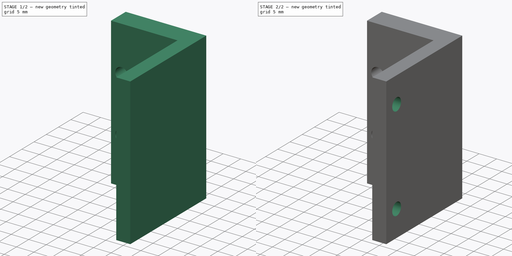
[diagram: build sequence overview — one tinted view per stage of 2, left to right]
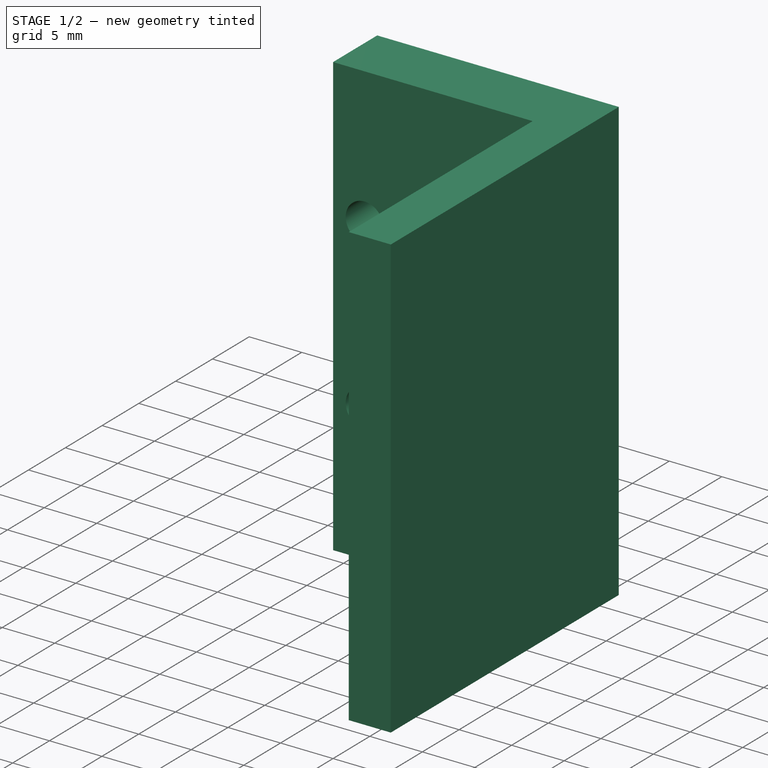
[diagram: stage 1 of 2 — iso view after this stage's code; geometry added in this stage tinted green]
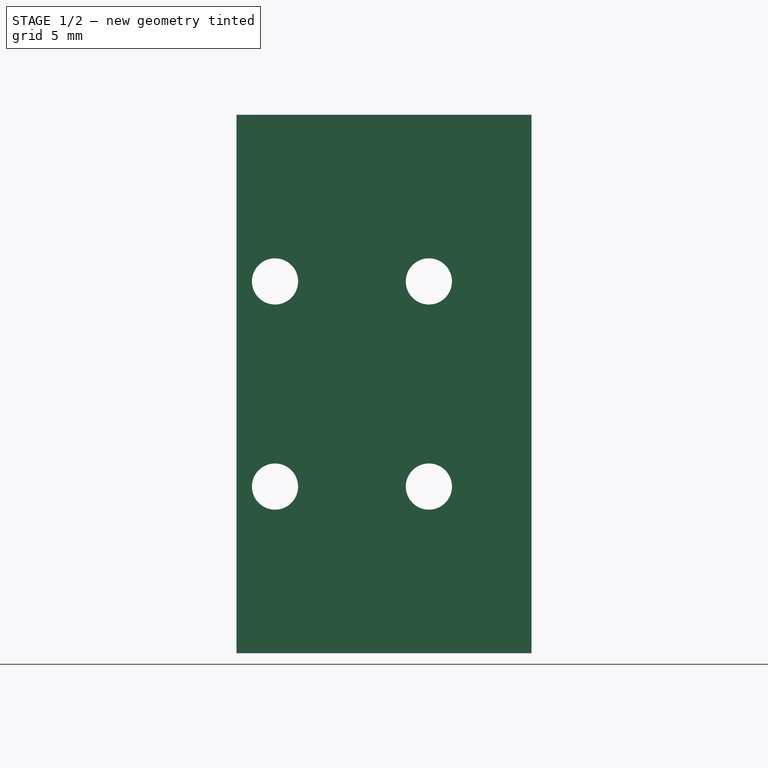
[diagram: stage 1 of 2 — front view after this stage's code; geometry added in this stage tinted green]
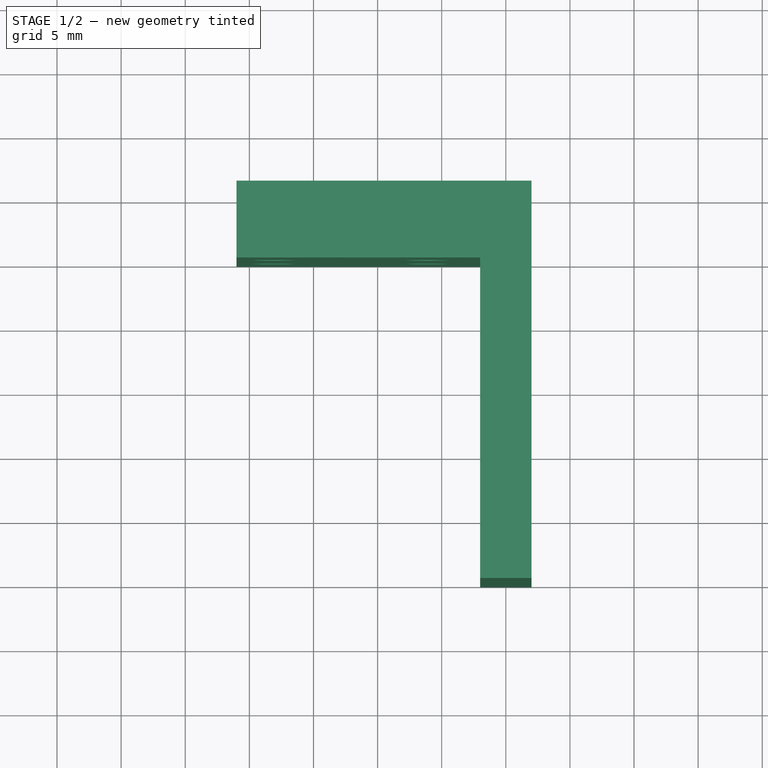
[diagram: stage 1 of 2 — top view after this stage's code; geometry added in this stage tinted green]
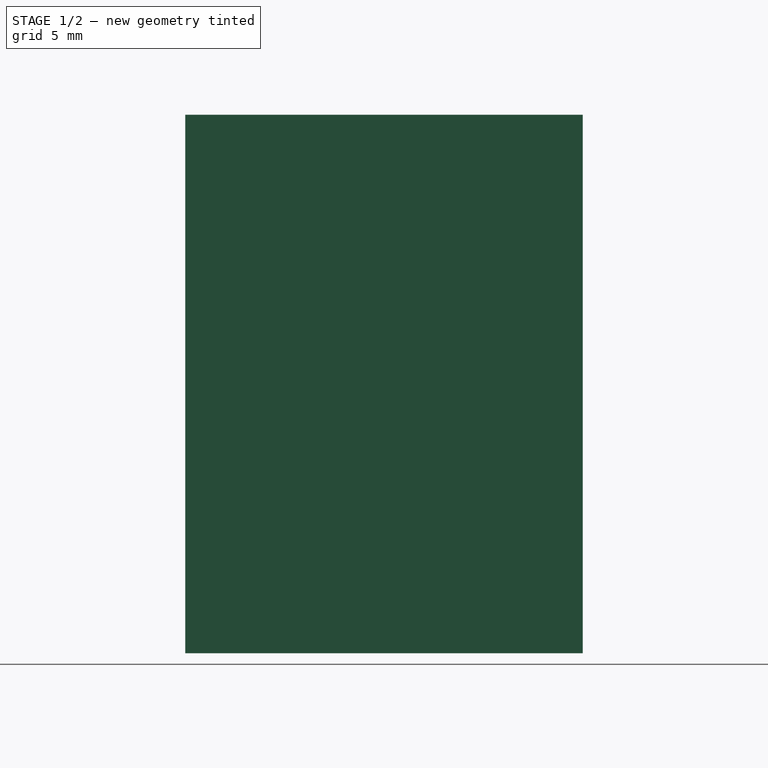
[diagram: stage 1 of 2 — right view after this stage's code; geometry added in this stage tinted green]
FCSTD DOCUMENT  (FreeCAD 0.16R6706 (Git))
Label: Regulador Correia Vertical
License: All rights reserved
LicenseURL: http://en.wikipedia.org/wiki/All_rights_reserved
objects: Sketcher::SketchObject×3, PartDesign::Pocket×2, PartDesign::Pad×1
note: 9 computed .brp shape members not serialized (recipe doc carries the construction recipe); baked Part::Feature solids carry a one-line shape summary decoded from their .brp

FEATURE [Sketcher::SketchObject] Sketch
  sketch-geometry (6):
    g0: LineSegment StartX=-21 StartY=31 StartZ=0 EndX=2 EndY=31 EndZ=0
    g1: LineSegment StartX=2 StartY=31 StartZ=0 EndX=2 EndY=0 EndZ=0
    g2: LineSegment StartX=2 StartY=0 StartZ=0 EndX=-2 EndY=0 EndZ=0
    g3: LineSegment StartX=-2 StartY=0 StartZ=0 EndX=-2 EndY=25 EndZ=0
    g4: LineSegment StartX=-2 StartY=25 StartZ=0 EndX=-21 EndY=25 EndZ=0
    g5: LineSegment StartX=-21 StartY=25 StartZ=0 EndX=-21 EndY=31 EndZ=0
  constraints (17):
    c: DistanceX(g0,g0) = 23
    c: Coincident(g1,g2)
    c: Coincident(g2,g3)
    c: Coincident(g4,g5)
    c: Coincident(g0,g5)
    c: Vertical(g5)
    c: Vertical(g3)
    c: Vertical(g1)
    c: Horizontal(g4)
    c: Horizontal(g2)
    c: Coincident(g4,g3)
    c: DistanceY(g5,g5) = 6
    c: Horizontal(g0)
    c: DistanceY(g1,g0) = 31
    c: DistanceX(g2,g2) = 4
    c: Coincident(g1,g0)
    c: Symmetric(g2,g1,g-1)
FEATURE [PartDesign::Pad] Pad
  Length = 42
  Length2 = 100
  Sketch = -> Sketch
  Type = 0
FEATURE [Sketcher::SketchObject] Sketch001
  ExternalGeometry = -> [Pad]
  Placement = pos=(0,31,0) rot=(0,0.707107,0.707107;3.14159rad)
  Support = -> Pad [Face1]
  sketch-geometry (6):
    g0: LineSegment [constr] StartX=6 StartY=29 StartZ=0 EndX=18 EndY=29 EndZ=0
    g1: Circle CenterX=6 CenterY=29 CenterZ=0 NormalX=0 NormalY=0 NormalZ=1 Radius=1.8
    g2: Circle CenterX=18 CenterY=29 CenterZ=0 NormalX=0 NormalY=0 NormalZ=1 Radius=1.8
    g3: LineSegment [constr] StartX=6 StartY=13 StartZ=0 EndX=18 EndY=13 EndZ=0
    g4: Circle CenterX=6 CenterY=13 CenterZ=0 NormalX=0 NormalY=0 NormalZ=1 Radius=1.8
    g5: Circle CenterX=18 CenterY=13 CenterZ=0 NormalX=0 NormalY=0 NormalZ=1 Radius=1.8
  constraints (16):
    c: Horizontal(g0)
    c: DistanceX(g0,g0) = 12
    c: Radius(g1) = 1.8
    c: Equal(g1,g2) = 1.8
    c: Coincident(g0,g2)
    c: Coincident(g0,g1)
    c: Horizontal(g3)
    c: Equal(g0,g3) = 12
    c: Equal(g1,g4) = 1.8
    c: Equal(g4,g5) = 1.8
    c: Coincident(g3,g5)
    c: Coincident(g3,g4)
    c: DistanceX(g0,g-3) = 3
    c: DistanceX(g3,g-4) = 3
    c: DistanceY(g0,g-3) = 13
    c: DistanceY(g-4,g3) = 13
FEATURE [PartDesign::Pocket] Pocket
  Length = 5
  Sketch = -> Sketch001
  Type = 2
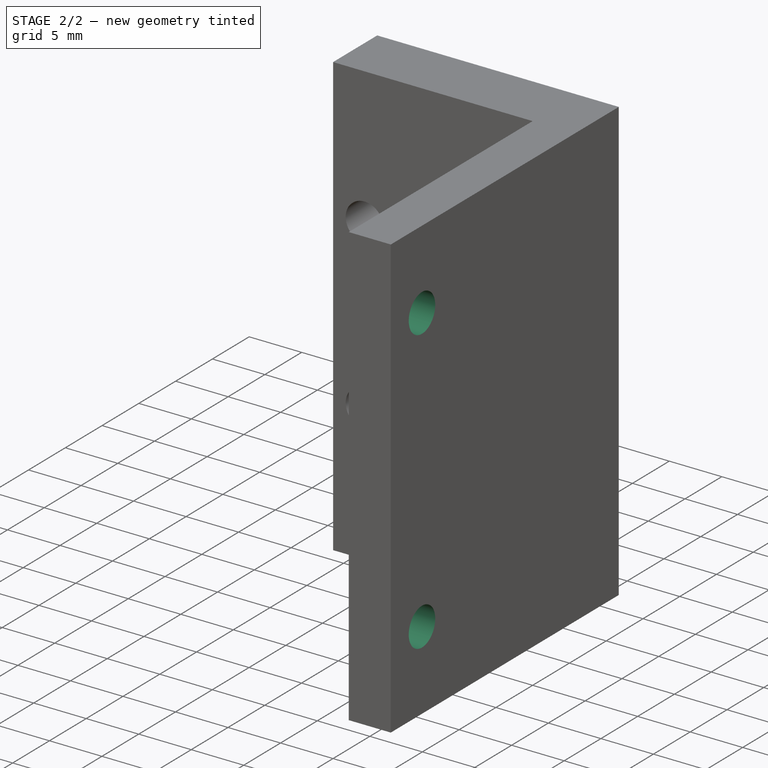
[diagram: stage 2 of 2 — iso view after this stage's code; geometry added in this stage tinted green]
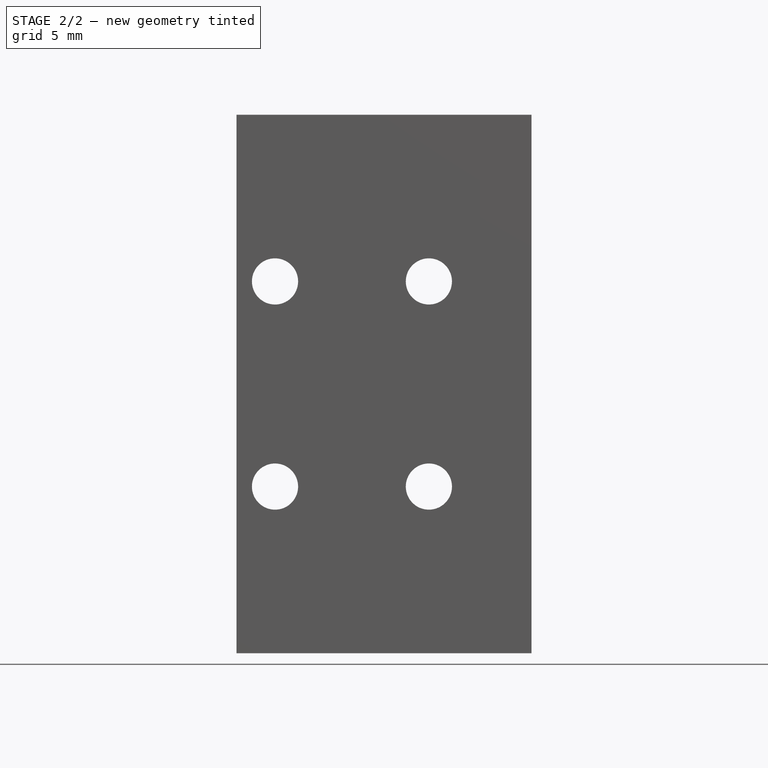
[diagram: stage 2 of 2 — front view after this stage's code; geometry added in this stage tinted green]
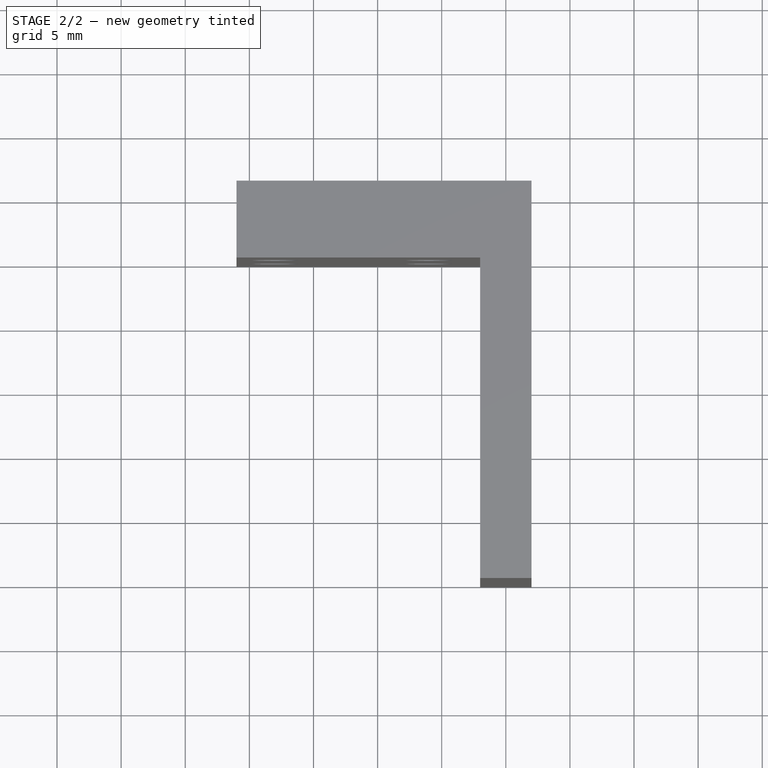
[diagram: stage 2 of 2 — top view after this stage's code; geometry added in this stage tinted green]
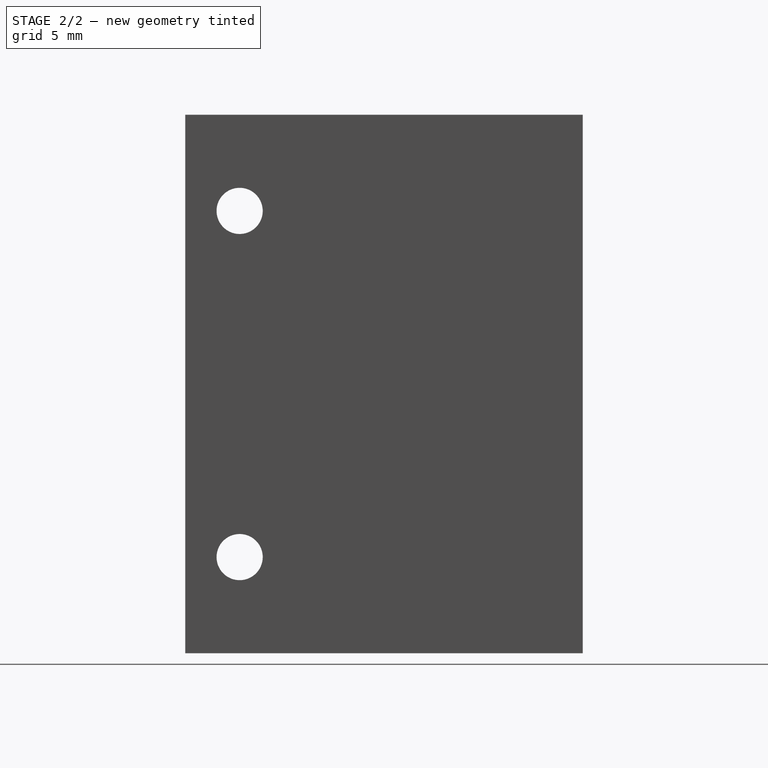
[diagram: stage 2 of 2 — right view after this stage's code; geometry added in this stage tinted green]
FEATURE [Sketcher::SketchObject] Sketch002  label="furos plate"
  Placement = pos=(-2,0,0) rot=(0.57735,-0.57735,-0.57735;2.0944rad)
  Support = -> Pocket [Face12]
  sketch-geometry (4):
    g0: LineSegment [constr] StartX=-4.24128 StartY=21 StartZ=0 EndX=0.758722 EndY=21 EndZ=0
    g1: LineSegment [constr] StartX=-4.24128 StartY=34.5 StartZ=0 EndX=-4.24128 EndY=7.5 EndZ=0
    g2: Circle CenterX=-4.24128 CenterY=34.5 CenterZ=0 NormalX=0 NormalY=0 NormalZ=1 Radius=1.8
    g3: Circle CenterX=-4.24128 CenterY=7.5 CenterZ=0 NormalX=0 NormalY=0 NormalZ=1 Radius=1.8
FEATURE [PartDesign::Pocket] Pocket001
  Length = 5
  Sketch = -> Sketch002
  Type = 2
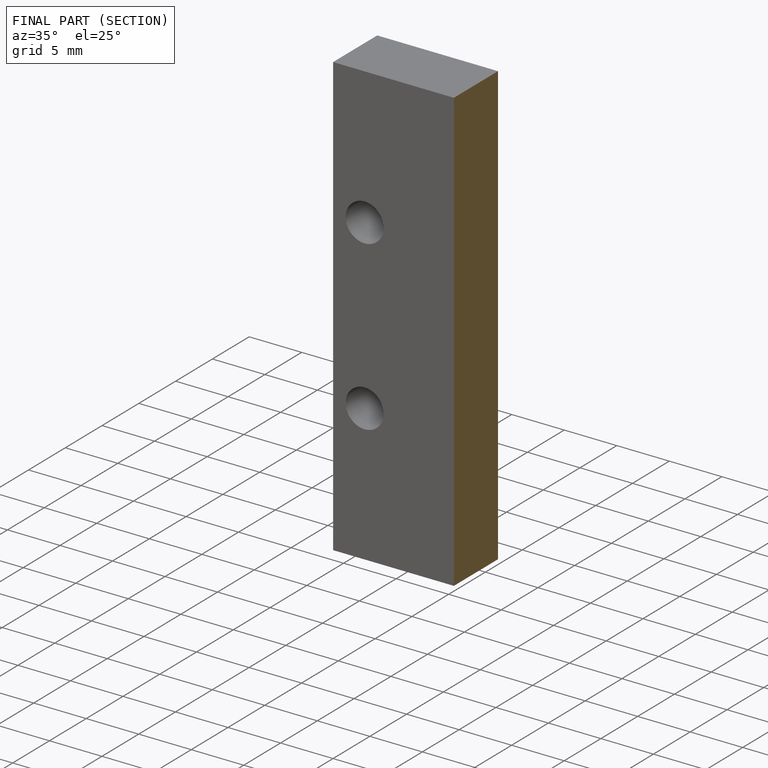
[diagram: finished part — half-section view (interior)]
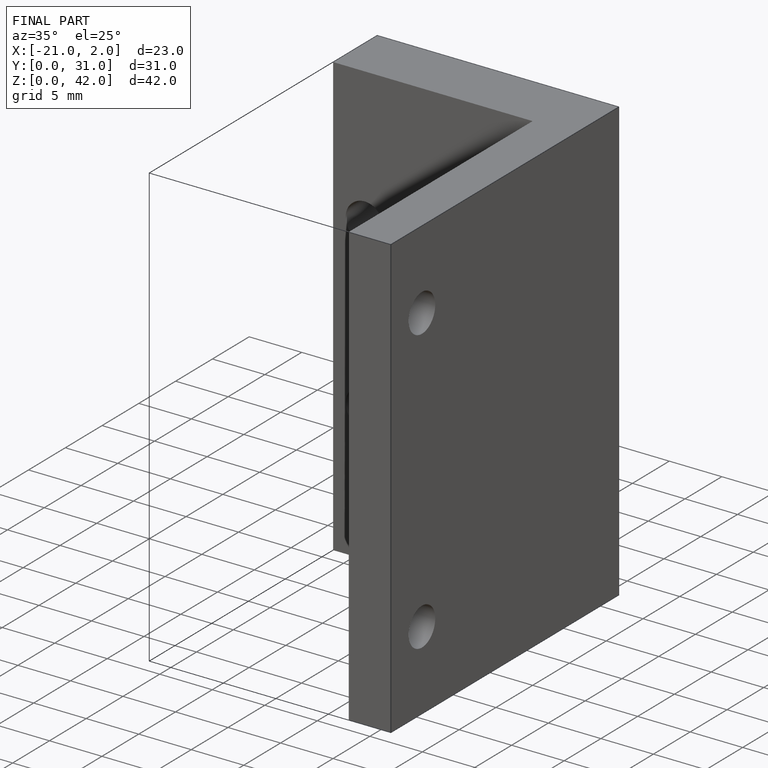
[diagram: finished part — iso view with bounding-box wireframe]
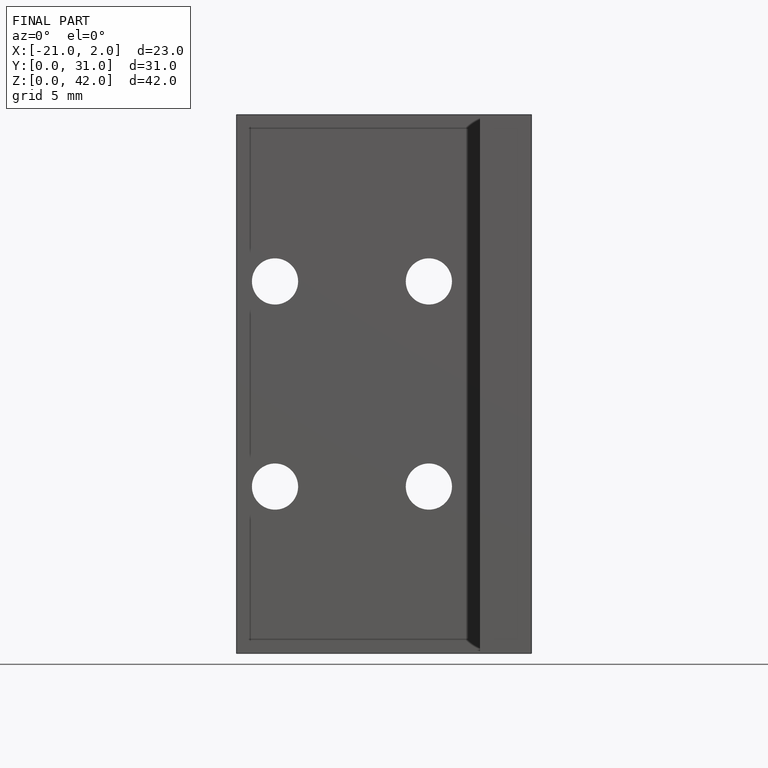
[diagram: finished part — front view with bounding-box wireframe]
